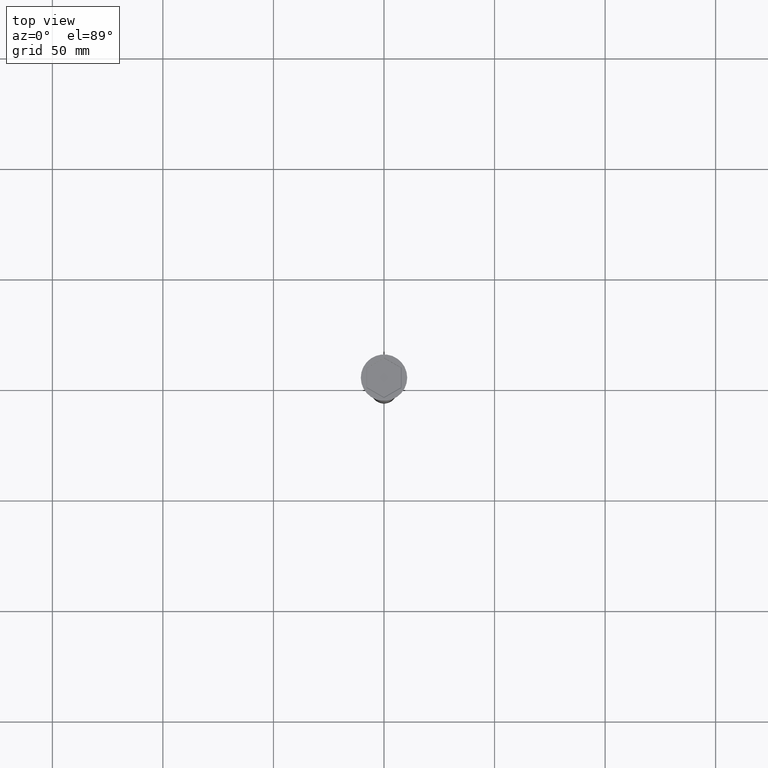
[diagram: clean part render]
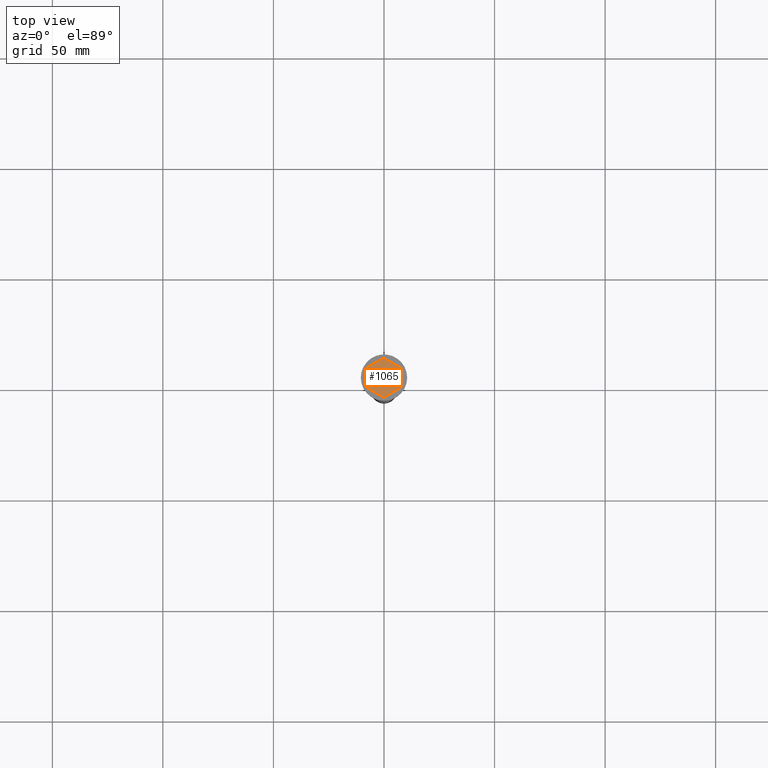
[diagram: same view with one face highlighted and labeled with its STEP entity id]
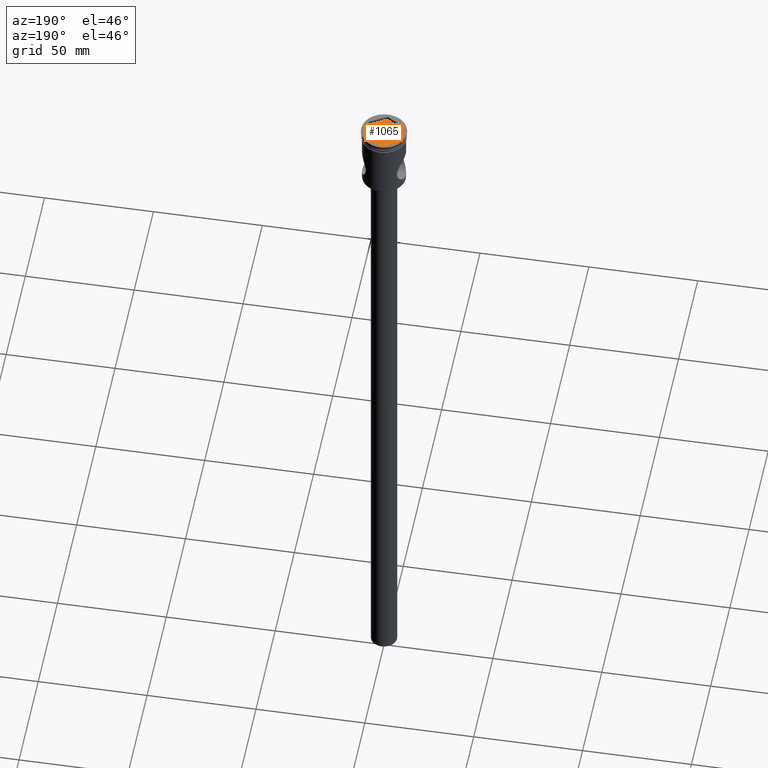
[diagram: same view with one face highlighted and labeled with its STEP entity id]
A machine part, top view. The second image highlights one B-rep face of the part: STEP entity #1065.
A second angle (auxiliary view) of the same face is appended — the face is thin or edge-on in the first view.
In plain terms, the highlighted planar face has unit normal (-0, 0, 1).
Its self-contained STEP definition (entity closure, byte-faithful):
#21 = CARTESIAN_POINT ( 'NONE',  ( 8.673617379884035472E-16, 8.891194145520236347, -2.000000000000000000 ) ) ;
#38 = CARTESIAN_POINT ( 'NONE',  ( 7.700000000000000178, 4.445597072760118174, -2.000000000000000000 ) ) ;
#96 = DIRECTION ( 'NONE',  ( -9.755289602189348473E-17, -1.000000000000000000, 0.000000000000000000 ) ) ;
#125 = CARTESIAN_POINT ( 'NONE',  ( 7.699999999999999289, -4.445597072760119950, -2.000000000000000000 ) ) ;
#217 = ORIENTED_EDGE ( 'NONE', *, *, #860, .T. ) ;
#243 = CARTESIAN_POINT ( 'NONE',  ( 8.673617379884035472E-16, 8.891194145520236347, -2.000000000000000000 ) ) ;
#279 = VERTEX_POINT ( 'NONE', #21 ) ;
#292 = VERTEX_POINT ( 'NONE', #710 ) ;
#318 = PLANE ( 'NONE',  #952 ) ;
#341 = CARTESIAN_POINT ( 'NONE',  ( 7.699999999999999289, -4.445597072760119950, -2.000000000000000000 ) ) ;
#394 = LINE ( 'NONE', #1342, #449 ) ;
#405 = ORIENTED_EDGE ( 'NONE', *, *, #1036, .T. ) ;
#421 = VERTEX_POINT ( 'NONE', #38 ) ;
#448 = CARTESIAN_POINT ( 'NONE',  ( 0.000000000000000000, 0.000000000000000000, -2.000000000000000000 ) ) ;
#449 = VECTOR ( 'NONE', #802, 1000.000000000000114 ) ;
#499 = LINE ( 'NONE', #979, #1464 ) ;
#519 = DIRECTION ( 'NONE',  ( -0.8660254037844385966, 0.4999999999999999445, 0.000000000000000000 ) ) ;
#526 = ORIENTED_EDGE ( 'NONE', *, *, #1197, .T. ) ;
#534 = VERTEX_POINT ( 'NONE', #763 ) ;
#595 = DIRECTION ( 'NONE',  ( 9.755289602189344775E-17, 1.000000000000000000, 0.000000000000000000 ) ) ;
#597 = DIRECTION ( 'NONE',  ( 1.000000000000000000, 0.000000000000000000, 0.000000000000000000 ) ) ;
#607 = DIRECTION ( 'NONE',  ( -0.000000000000000000, 0.000000000000000000, 1.000000000000000000 ) ) ;
#652 = ORIENTED_EDGE ( 'NONE', *, *, #838, .T. ) ;
#668 = EDGE_LOOP ( 'NONE', ( #652, #956, #405, #217, #526, #1141 ) ) ;
#710 = CARTESIAN_POINT ( 'NONE',  ( -7.699999999999999289, 4.445597072760116397, -2.000000000000000000 ) ) ;
#731 = DIRECTION ( 'NONE',  ( -0.8660254037844385966, -0.5000000000000001110, 0.000000000000000000 ) ) ;
#755 = LINE ( 'NONE', #1475, #1194 ) ;
#763 = CARTESIAN_POINT ( 'NONE',  ( -7.700000000000000178, -4.445597072760118174, -2.000000000000000000 ) ) ;
#802 = DIRECTION ( 'NONE',  ( 0.8660254037844387076, 0.4999999999999997780, 0.000000000000000000 ) ) ;
#838 = EDGE_CURVE ( 'NONE', #421, #279, #755, .T. ) ;
#860 = EDGE_CURVE ( 'NONE', #534, #1023, #499, .T. ) ;
#907 = CARTESIAN_POINT ( 'NONE',  ( -7.699999999999999289, 4.445597072760116397, -2.000000000000000000 ) ) ;
#914 = FACE_OUTER_BOUND ( 'NONE', #668, .T. ) ;
#952 = AXIS2_PLACEMENT_3D ( 'NONE', #448, #607, #597 ) ;
#956 = ORIENTED_EDGE ( 'NONE', *, *, #1452, .T. ) ;
#973 = LINE ( 'NONE', #243, #1265 ) ;
#979 = CARTESIAN_POINT ( 'NONE',  ( -7.700000000000000178, -4.445597072760118174, -2.000000000000000000 ) ) ;
#996 = DIRECTION ( 'NONE',  ( 0.8660254037844387076, -0.4999999999999999445, 0.000000000000000000 ) ) ;
#999 = VECTOR ( 'NONE', #595, 1000.000000000000000 ) ;
#1023 = VERTEX_POINT ( 'NONE', #1159 ) ;
#1036 = EDGE_CURVE ( 'NONE', #292, #534, #1152, .T. ) ;
#1065 = ADVANCED_FACE ( 'NONE', ( #914 ), #318, .T. ) ;
#1141 = ORIENTED_EDGE ( 'NONE', *, *, #1354, .T. ) ;
#1152 = LINE ( 'NONE', #907, #1242 ) ;
#1159 = CARTESIAN_POINT ( 'NONE',  ( -4.336808689942017736E-16, -8.891194145520236347, -2.000000000000000000 ) ) ;
#1186 = LINE ( 'NONE', #341, #999 ) ;
#1194 = VECTOR ( 'NONE', #519, 1000.000000000000114 ) ;
#1197 = EDGE_CURVE ( 'NONE', #1023, #1318, #394, .T. ) ;
#1242 = VECTOR ( 'NONE', #96, 1000.000000000000000 ) ;
#1265 = VECTOR ( 'NONE', #731, 1000.000000000000000 ) ;
#1318 = VERTEX_POINT ( 'NONE', #125 ) ;
#1342 = CARTESIAN_POINT ( 'NONE',  ( -4.336808689942017736E-16, -8.891194145520236347, -2.000000000000000000 ) ) ;
#1354 = EDGE_CURVE ( 'NONE', #1318, #421, #1186, .T. ) ;
#1452 = EDGE_CURVE ( 'NONE', #279, #292, #973, .T. ) ;
#1464 = VECTOR ( 'NONE', #996, 999.9999999999998863 ) ;
#1475 = CARTESIAN_POINT ( 'NONE',  ( 7.700000000000000178, 4.445597072760118174, -2.000000000000000000 ) ) ;